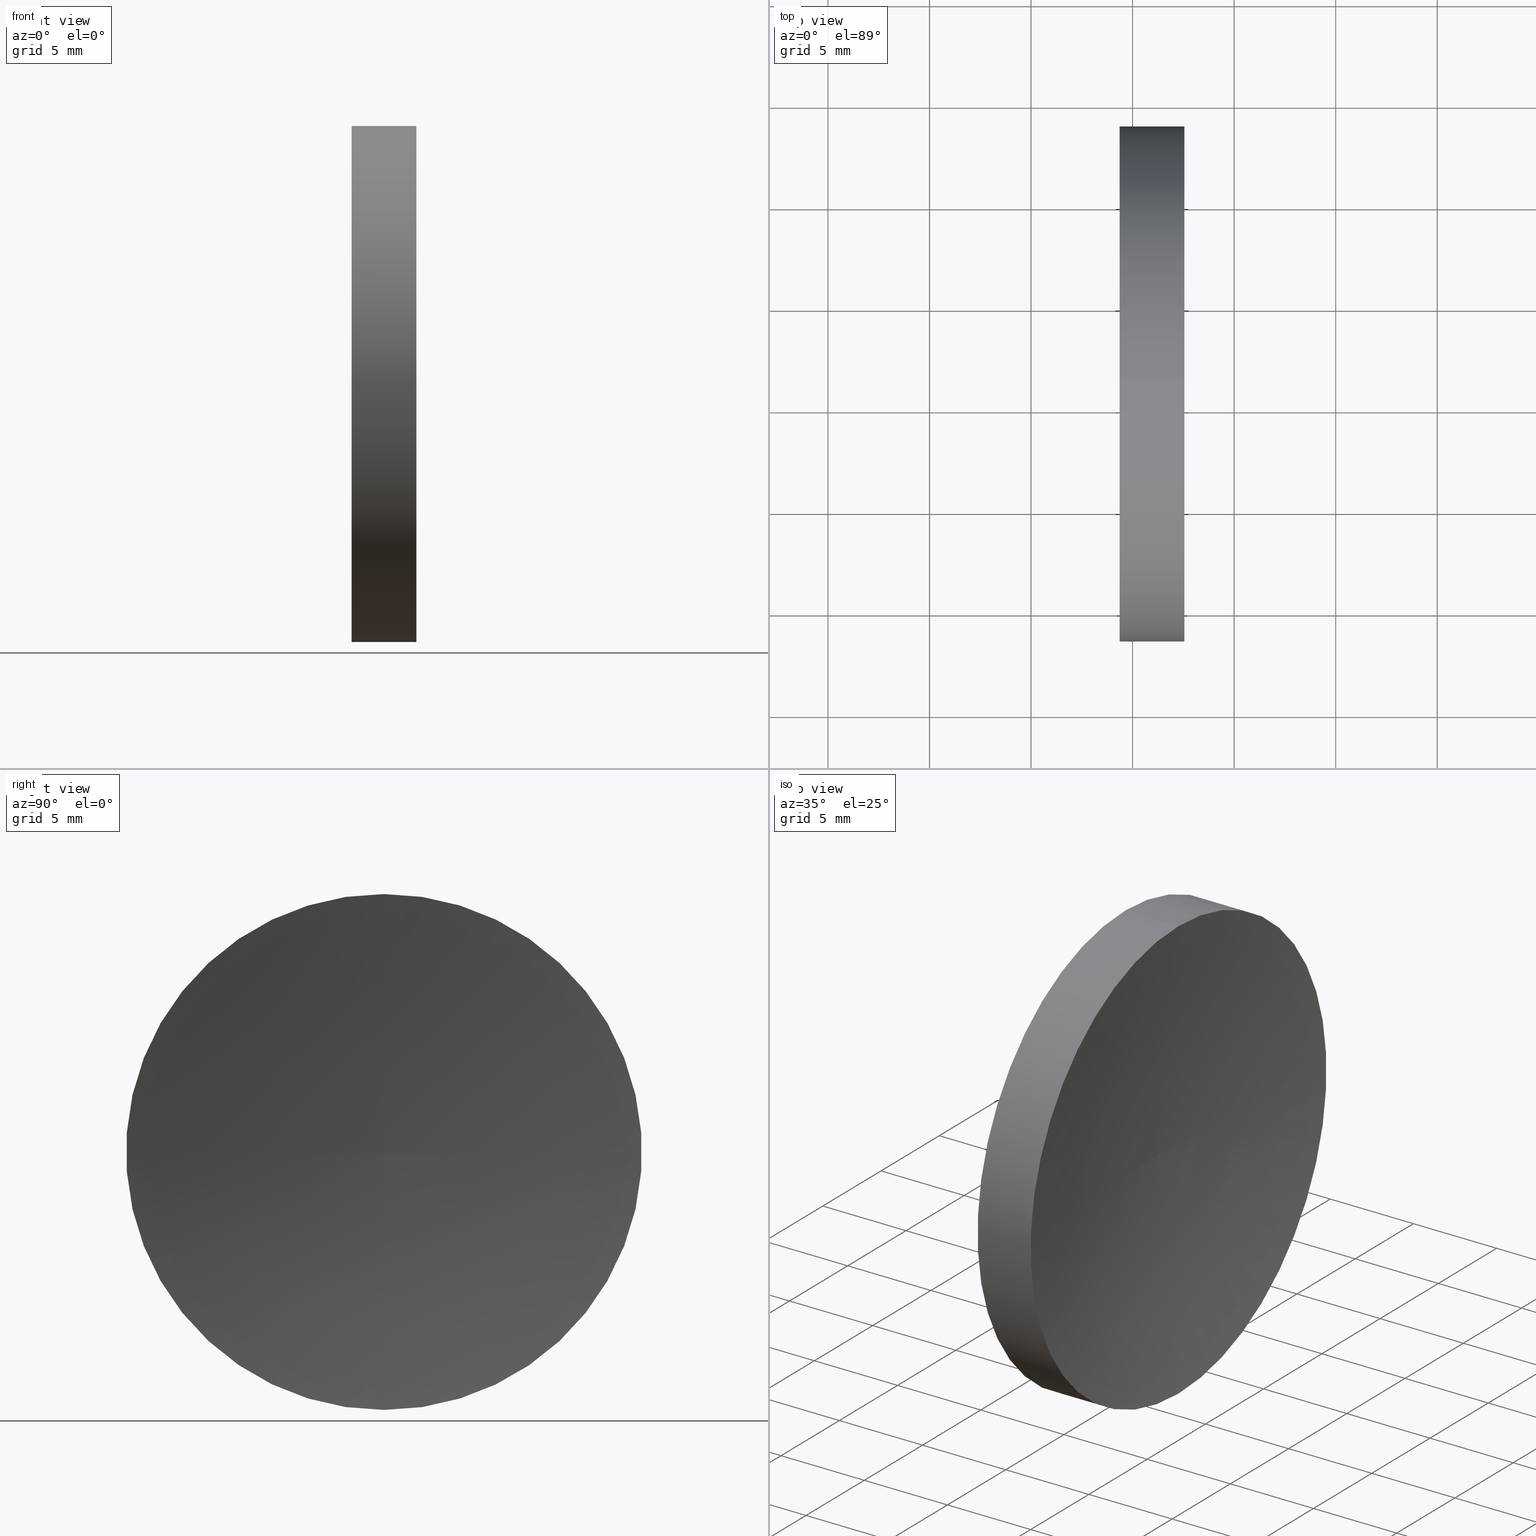
[diagram: canonical four-view strip — front | top / right | iso, engineering-drawing reading convention]
A machine part, canonical four-view strip (front | top / right | iso — engineering-drawing reading convention). The complete STEP part file that produces these views, byte-faithful:
ISO-10303-21;
HEADER;
FILE_DESCRIPTION (( 'STEP AP214' ),
    '1' );
FILE_NAME ('120268.STEP',
    '2019-06-25T03:22:29',
    ( '' ),
    ( '' ),
    'SwSTEP 2.0',
    'SolidWorks 2016',
    '' );
FILE_SCHEMA (( 'AUTOMOTIVE_DESIGN' ));
ENDSEC;

DATA;
#1 = CARTESIAN_POINT ( 'NONE',  ( 111.9552297575605700, 71.19398908659370300, 0.0000000000000000000 ) ) ;
#2 = CARTESIAN_POINT ( 'NONE',  ( 122.5491730701731500, 71.19398908659370300, 0.0000000000000000000 ) ) ;
#3 = SURFACE_STYLE_USAGE ( .BOTH. , #129 ) ;
#4 = ORIENTED_EDGE ( 'NONE', *, *, #15, .T. ) ;
#5 = CYLINDRICAL_SURFACE ( 'NONE', #133, 12.69999999999998900 ) ;
#6 =( GEOMETRIC_REPRESENTATION_CONTEXT ( 3 ) GLOBAL_UNCERTAINTY_ASSIGNED_CONTEXT ( ( #61 ) ) GLOBAL_UNIT_ASSIGNED_CONTEXT ( ( #82, #124, #87 ) ) REPRESENTATION_CONTEXT ( 'NONE', 'WORKASPACE' ) );
#7 = EDGE_CURVE ( 'NONE', #22, #17, #60, .T. ) ;
#8 = LINE ( 'NONE', #59, #159 ) ;
#9 = DIRECTION ( 'NONE',  ( -1.000000000000000000, -0.0000000000000000000, -0.0000000000000000000 ) ) ;
#10 = CARTESIAN_POINT ( 'NONE',  ( 122.5491730701731500, 71.19398908659370300, -12.69999999999995800 ) ) ;
#11 = DIRECTION ( 'NONE',  ( 1.000000000000000000, 0.0000000000000000000, 0.0000000000000000000 ) ) ;
#12 = DIRECTION ( 'NONE',  ( 0.0000000000000000000, 0.0000000000000000000, -1.000000000000000000 ) ) ;
#13 = CARTESIAN_POINT ( 'NONE',  ( 122.5491730701731500, 71.19398908659370300, 0.0000000000000000000 ) ) ;
#14 = PRODUCT_DEFINITION_FORMATION_WITH_SPECIFIED_SOURCE ( '�κ�', '', #43, .NOT_KNOWN. ) ;
#15 = EDGE_CURVE ( 'NONE', #27, #134, #8, .T. ) ;
#16 = APPLICATION_PROTOCOL_DEFINITION ( 'draft international standard', 'automotive_design', 1998, #111 ) ;
#17 = VERTEX_POINT ( 'NONE', #107 ) ;
#18 = CARTESIAN_POINT ( 'NONE',  ( 119.3629307920347200, 71.19398908659370300, 0.0000000000000000000 ) ) ;
#19 = FACE_OUTER_BOUND ( 'NONE', #116, .T. ) ;
#20 = APPLICATION_PROTOCOL_DEFINITION ( 'draft international standard', 'automotive_design', 1998, #77 ) ;
#21 = LINE ( 'NONE', #48, #78 ) ;
#22 = VERTEX_POINT ( 'NONE', #154 ) ;
#23 = ADVANCED_FACE ( 'NONE', ( #19 ), #32, .F. ) ;
#24 = FACE_OUTER_BOUND ( 'NONE', #158, .T. ) ;
#25 = PRODUCT_DEFINITION ( 'δ֪', '', #14, #35 ) ;
#26 = AXIS2_PLACEMENT_3D ( 'NONE', #36, #141, #153 ) ;
#27 = VERTEX_POINT ( 'NONE', #10 ) ;
#28 = DIRECTION ( 'NONE',  ( -1.000000000000000000, -0.0000000000000000000, -0.0000000000000000000 ) ) ;
#29 = CARTESIAN_POINT ( 'NONE',  ( 119.3629307920347200, 71.19398908659370300, 0.0000000000000000000 ) ) ;
#30 = ORIENTED_EDGE ( 'NONE', *, *, #115, .T. ) ;
#31 = PRODUCT_CONTEXT ( 'NONE', #111, 'mechanical' ) ;
#32 = TOROIDAL_SURFACE ( 'NONE', #140, -0.01805458936847415000, 68.76999999999996800 ) ;
#33 = PRODUCT_RELATED_PRODUCT_CATEGORY ( 'part', '', ( #43 ) ) ;
#34 = ORIENTED_EDGE ( 'NONE', *, *, #15, .F. ) ;
#35 = PRODUCT_DEFINITION_CONTEXT ( 'detailed design', #77, 'design' ) ;
#36 = CARTESIAN_POINT ( 'NONE',  ( 190.1329284220462900, 71.19398908659370300, -0.01805458936847415000 ) ) ;
#37 =( NAMED_UNIT ( * ) SI_UNIT ( $, .STERADIAN. ) SOLID_ANGLE_UNIT ( ) );
#38 = MECHANICAL_DESIGN_GEOMETRIC_PRESENTATION_REPRESENTATION (  '', ( #126 ), #6 ) ;
#39 = DIRECTION ( 'NONE',  ( -1.000000000000000000, -0.0000000000000000000, -0.0000000000000000000 ) ) ;
#40 = EDGE_LOOP ( 'NONE', ( #34, #66, #79, #155 ) ) ;
#41 =( GEOMETRIC_REPRESENTATION_CONTEXT ( 3 ) GLOBAL_UNCERTAINTY_ASSIGNED_CONTEXT ( ( #144 ) ) GLOBAL_UNIT_ASSIGNED_CONTEXT ( ( #83, #127, #97 ) ) REPRESENTATION_CONTEXT ( 'NONE', 'WORKASPACE' ) );
#42 = SURFACE_STYLE_FILL_AREA ( #114 ) ;
#43 = PRODUCT ( '120268', '120268', '', ( #31 ) ) ;
#44 = COLOUR_RGB ( '',1.000000000000000000, 1.000000000000000000, 1.000000000000000000 ) ;
#45 = ADVANCED_FACE ( 'NONE', ( #24 ), #108, .T. ) ;
#46 = CARTESIAN_POINT ( 'NONE',  ( 190.1329284220462900, 71.19398908659370300, 0.01805458936847415000 ) ) ;
#47 = AXIS2_PLACEMENT_3D ( 'NONE', #13, #39, #99 ) ;
#48 = CARTESIAN_POINT ( 'NONE',  ( 111.9552297575605700, 71.19398908659370300, 12.69999999999998900 ) ) ;
#49 = DIRECTION ( 'NONE',  ( 0.0000000000000000000, 0.0000000000000000000, 1.000000000000000000 ) ) ;
#50 = FACE_OUTER_BOUND ( 'NONE', #52, .T. ) ;
#51 = CARTESIAN_POINT ( 'NONE',  ( 0.0000000000000000000, 0.0000000000000000000, 0.0000000000000000000 ) ) ;
#52 = EDGE_LOOP ( 'NONE', ( #53, #88 ) ) ;
#53 = ORIENTED_EDGE ( 'NONE', *, *, #138, .T. ) ;
#54 = STYLED_ITEM ( 'NONE', ( #55 ), #166 ) ;
#55 = PRESENTATION_STYLE_ASSIGNMENT (( #63 ) ) ;
#56 = DIRECTION ( 'NONE',  ( -1.000000000000000000, -0.0000000000000000000, -0.0000000000000000000 ) ) ;
#57 = CARTESIAN_POINT ( 'NONE',  ( 190.1329284220462900, 71.19398908659370300, 0.0000000000000000000 ) ) ;
#58 = ORIENTED_EDGE ( 'NONE', *, *, #7, .F. ) ;
#59 = CARTESIAN_POINT ( 'NONE',  ( 111.9552297575605700, 71.19398908659370300, -12.69999999999998900 ) ) ;
#60 = CIRCLE ( 'NONE', #26, 68.76999999999996800 ) ;
#61 = UNCERTAINTY_MEASURE_WITH_UNIT (LENGTH_MEASURE( 1.000000000000000100E-005 ), #82, 'distance_accuracy_value', 'NONE');
#62 =( GEOMETRIC_REPRESENTATION_CONTEXT ( 3 ) GLOBAL_UNCERTAINTY_ASSIGNED_CONTEXT ( ( #102 ) ) GLOBAL_UNIT_ASSIGNED_CONTEXT ( ( #157, #76, #37 ) ) REPRESENTATION_CONTEXT ( 'NONE', 'WORKASPACE' ) );
#63 = SURFACE_STYLE_USAGE ( .BOTH. , #128 ) ;
#64 = PRESENTATION_LAYER_ASSIGNMENT (  '', '', ( #54 ) ) ;
#65 = SHAPE_DEFINITION_REPRESENTATION ( #89, #166 ) ;
#66 = ORIENTED_EDGE ( 'NONE', *, *, #149, .T. ) ;
#67 = ADVANCED_FACE ( 'NONE', ( #132 ), #80, .F. ) ;
#68 = ADVANCED_FACE ( 'NONE', ( #50 ), #164, .F. ) ;
#69 = ORIENTED_EDGE ( 'NONE', *, *, #7, .T. ) ;
#70 = DIRECTION ( 'NONE',  ( 0.0000000000000000000, 0.0000000000000000000, 1.000000000000000000 ) ) ;
#71 = CARTESIAN_POINT ( 'NONE',  ( 111.9552297575605700, 71.19398908659370300, 0.0000000000000000000 ) ) ;
#72 = DIRECTION ( 'NONE',  ( 0.0000000000000000000, 0.0000000000000000000, 1.000000000000000000 ) ) ;
#73 = DIRECTION ( 'NONE',  ( 0.0000000000000000000, 0.0000000000000000000, 1.000000000000000000 ) ) ;
#74 = DIRECTION ( 'NONE',  ( 0.0000000000000000000, -2.018000262878357300E-016, 1.000000000000000000 ) ) ;
#75 = ORIENTED_EDGE ( 'NONE', *, *, #122, .F. ) ;
#76 =( NAMED_UNIT ( * ) PLANE_ANGLE_UNIT ( ) SI_UNIT ( $, .RADIAN. ) );
#77 = APPLICATION_CONTEXT ( 'automotive_design' ) ;
#78 = VECTOR ( 'NONE', #165, 1000.000000000000000 ) ;
#79 = ORIENTED_EDGE ( 'NONE', *, *, #122, .T. ) ;
#80 = TOROIDAL_SURFACE ( 'NONE', #156, -0.01805458936847415000, 68.76999999999996800 ) ;
#81 = DIRECTION ( 'NONE',  ( 0.0000000000000000000, 0.0000000000000000000, 1.000000000000000000 ) ) ;
#82 =( LENGTH_UNIT ( ) NAMED_UNIT ( * ) SI_UNIT ( .MILLI., .METRE. ) );
#83 =( LENGTH_UNIT ( ) NAMED_UNIT ( * ) SI_UNIT ( .MILLI., .METRE. ) );
#84 = CARTESIAN_POINT ( 'NONE',  ( 119.3629307920347200, 71.19398908659370300, 12.70000000000000300 ) ) ;
#85 = ORIENTED_EDGE ( 'NONE', *, *, #163, .T. ) ;
#86 = CIRCLE ( 'NONE', #47, 12.69999999999997400 ) ;
#87 =( NAMED_UNIT ( * ) SI_UNIT ( $, .STERADIAN. ) SOLID_ANGLE_UNIT ( ) );
#88 = ORIENTED_EDGE ( 'NONE', *, *, #104, .T. ) ;
#89 = PRODUCT_DEFINITION_SHAPE ( 'NONE', 'NONE',  #25 ) ;
#90 = PRESENTATION_LAYER_ASSIGNMENT (  '', '', ( #126 ) ) ;
#91 = EDGE_LOOP ( 'NONE', ( #151, #130, #69 ) ) ;
#92 = COLOUR_RGB ( '',1.000000000000000000, 1.000000000000000000, 1.000000000000000000 ) ;
#93 = CLOSED_SHELL ( 'NONE', ( #45, #23, #67, #139, #68 ) ) ;
#94 = ORIENTED_EDGE ( 'NONE', *, *, #138, .F. ) ;
#95 = CARTESIAN_POINT ( 'NONE',  ( 190.1329284220462900, 71.19398908659370300, 0.0000000000000000000 ) ) ;
#96 = DIRECTION ( 'NONE',  ( -0.0000000000000000000, 1.000000000000000000, 1.224646799147353200E-016 ) ) ;
#97 =( NAMED_UNIT ( * ) SI_UNIT ( $, .STERADIAN. ) SOLID_ANGLE_UNIT ( ) );
#98 = AXIS2_PLACEMENT_3D ( 'NONE', #2, #142, #72 ) ;
#99 = DIRECTION ( 'NONE',  ( 0.0000000000000000000, 0.0000000000000000000, 1.000000000000000000 ) ) ;
#100 = FILL_AREA_STYLE_COLOUR ( '', #92 ) ;
#101 = DIRECTION ( 'NONE',  ( 0.0000000000000000000, 0.0000000000000000000, 1.000000000000000000 ) ) ;
#102 = UNCERTAINTY_MEASURE_WITH_UNIT (LENGTH_MEASURE( 1.000000000000000100E-005 ), #157, 'distance_accuracy_value', 'NONE');
#103 = AXIS2_PLACEMENT_3D ( 'NONE', #46, #96, #74 ) ;
#104 = EDGE_CURVE ( 'NONE', #134, #160, #118, .T. ) ;
#105 = DIRECTION ( 'NONE',  ( 1.000000000000000000, 0.0000000000000000000, 0.0000000000000000000 ) ) ;
#106 = MECHANICAL_DESIGN_GEOMETRIC_PRESENTATION_REPRESENTATION (  '', ( #54 ), #62 ) ;
#107 = CARTESIAN_POINT ( 'NONE',  ( 121.3629307920347000, 71.19398908659370300, 0.0000000000000000000 ) ) ;
#108 = CYLINDRICAL_SURFACE ( 'NONE', #148, 12.69999999999998900 ) ;
#109 = DIRECTION ( 'NONE',  ( 0.0000000000000000000, 0.0000000000000000000, 1.000000000000000000 ) ) ;
#110 = FILL_AREA_STYLE ('',( #143 ) ) ;
#111 = APPLICATION_CONTEXT ( 'automotive_design' ) ;
#112 = CARTESIAN_POINT ( 'NONE',  ( 119.3629307920347200, 71.19398908659370300, -12.70000000000000300 ) ) ;
#113 = CIRCLE ( 'NONE', #103, 68.76999999999996800 ) ;
#114 = FILL_AREA_STYLE ('',( #100 ) ) ;
#115 = EDGE_CURVE ( 'NONE', #27, #17, #113, .T. ) ;
#116 = EDGE_LOOP ( 'NONE', ( #119, #30, #58 ) ) ;
#117 = AXIS2_PLACEMENT_3D ( 'NONE', #29, #28, #73 ) ;
#118 = CIRCLE ( 'NONE', #117, 12.70000000000000300 ) ;
#119 = ORIENTED_EDGE ( 'NONE', *, *, #149, .F. ) ;
#120 = CIRCLE ( 'NONE', #98, 12.69999999999997400 ) ;
#121 = AXIS2_PLACEMENT_3D ( 'NONE', #18, #125, #101 ) ;
#122 = EDGE_CURVE ( 'NONE', #22, #160, #21, .T. ) ;
#123 = DIRECTION ( 'NONE',  ( -1.000000000000000000, -0.0000000000000000000, -0.0000000000000000000 ) ) ;
#124 =( NAMED_UNIT ( * ) PLANE_ANGLE_UNIT ( ) SI_UNIT ( $, .RADIAN. ) );
#125 = DIRECTION ( 'NONE',  ( -1.000000000000000000, -0.0000000000000000000, -0.0000000000000000000 ) ) ;
#126 = STYLED_ITEM ( 'NONE', ( #150 ), #136 ) ;
#127 =( NAMED_UNIT ( * ) PLANE_ANGLE_UNIT ( ) SI_UNIT ( $, .RADIAN. ) );
#128 = SURFACE_SIDE_STYLE ('',( #42 ) ) ;
#129 = SURFACE_SIDE_STYLE ('',( #146 ) ) ;
#130 = ORIENTED_EDGE ( 'NONE', *, *, #163, .F. ) ;
#131 = DIRECTION ( 'NONE',  ( 0.0000000000000000000, 0.0000000000000000000, 1.000000000000000000 ) ) ;
#132 = FACE_OUTER_BOUND ( 'NONE', #91, .T. ) ;
#133 = AXIS2_PLACEMENT_3D ( 'NONE', #1, #147, #49 ) ;
#134 = VERTEX_POINT ( 'NONE', #112 ) ;
#135 = CIRCLE ( 'NONE', #121, 12.70000000000000300 ) ;
#136 = MANIFOLD_SOLID_BREP ( '��ת1', #93 ) ;
#137 = AXIS2_PLACEMENT_3D ( 'NONE', #51, #131, #105 ) ;
#138 = EDGE_CURVE ( 'NONE', #160, #134, #135, .T. ) ;
#139 = ADVANCED_FACE ( 'NONE', ( #162 ), #5, .T. ) ;
#140 = AXIS2_PLACEMENT_3D ( 'NONE', #57, #9, #70 ) ;
#141 = DIRECTION ( 'NONE',  ( 0.0000000000000000000, -1.000000000000000000, 0.0000000000000000000 ) ) ;
#142 = DIRECTION ( 'NONE',  ( -1.000000000000000000, -0.0000000000000000000, -0.0000000000000000000 ) ) ;
#143 = FILL_AREA_STYLE_COLOUR ( '', #44 ) ;
#144 = UNCERTAINTY_MEASURE_WITH_UNIT (LENGTH_MEASURE( 1.000000000000000100E-005 ), #83, 'distance_accuracy_value', 'NONE');
#145 = CARTESIAN_POINT ( 'NONE',  ( 119.3629307920347200, 71.19398908659370300, 0.0000000000000000000 ) ) ;
#146 = SURFACE_STYLE_FILL_AREA ( #110 ) ;
#147 = DIRECTION ( 'NONE',  ( -1.000000000000000000, -0.0000000000000000000, -0.0000000000000000000 ) ) ;
#148 = AXIS2_PLACEMENT_3D ( 'NONE', #71, #152, #81 ) ;
#149 = EDGE_CURVE ( 'NONE', #27, #22, #86, .T. ) ;
#150 = PRESENTATION_STYLE_ASSIGNMENT (( #3 ) ) ;
#151 = ORIENTED_EDGE ( 'NONE', *, *, #115, .F. ) ;
#152 = DIRECTION ( 'NONE',  ( -1.000000000000000000, -0.0000000000000000000, -0.0000000000000000000 ) ) ;
#153 = DIRECTION ( 'NONE',  ( 0.0000000000000000000, 0.0000000000000000000, -1.000000000000000000 ) ) ;
#154 = CARTESIAN_POINT ( 'NONE',  ( 122.5491730701731500, 71.19398908659370300, 12.69999999999995800 ) ) ;
#155 = ORIENTED_EDGE ( 'NONE', *, *, #104, .F. ) ;
#156 = AXIS2_PLACEMENT_3D ( 'NONE', #95, #123, #109 ) ;
#157 =( LENGTH_UNIT ( ) NAMED_UNIT ( * ) SI_UNIT ( .MILLI., .METRE. ) );
#158 = EDGE_LOOP ( 'NONE', ( #85, #4, #94, #75 ) ) ;
#159 = VECTOR ( 'NONE', #56, 1000.000000000000000 ) ;
#160 = VERTEX_POINT ( 'NONE', #84 ) ;
#161 = AXIS2_PLACEMENT_3D ( 'NONE', #145, #11, #12 ) ;
#162 = FACE_OUTER_BOUND ( 'NONE', #40, .T. ) ;
#163 = EDGE_CURVE ( 'NONE', #22, #27, #120, .T. ) ;
#164 = PLANE ( 'NONE',  #161 ) ;
#165 = DIRECTION ( 'NONE',  ( -1.000000000000000000, -0.0000000000000000000, -0.0000000000000000000 ) ) ;
#166 = ADVANCED_BREP_SHAPE_REPRESENTATION ( '120268', ( #136, #137 ), #41 ) ;
ENDSEC;
END-ISO-10303-21;
